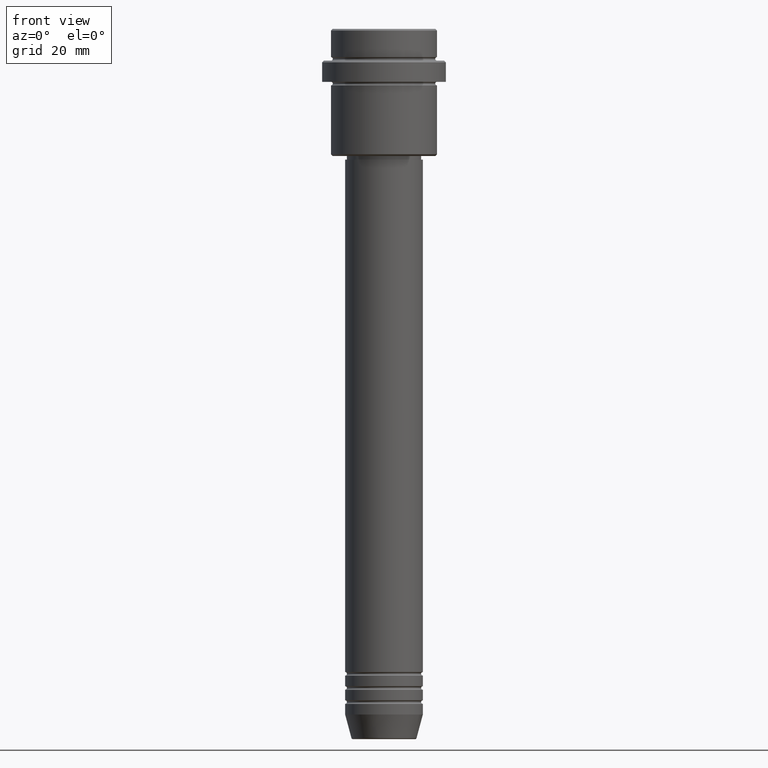
[diagram: clean part render]
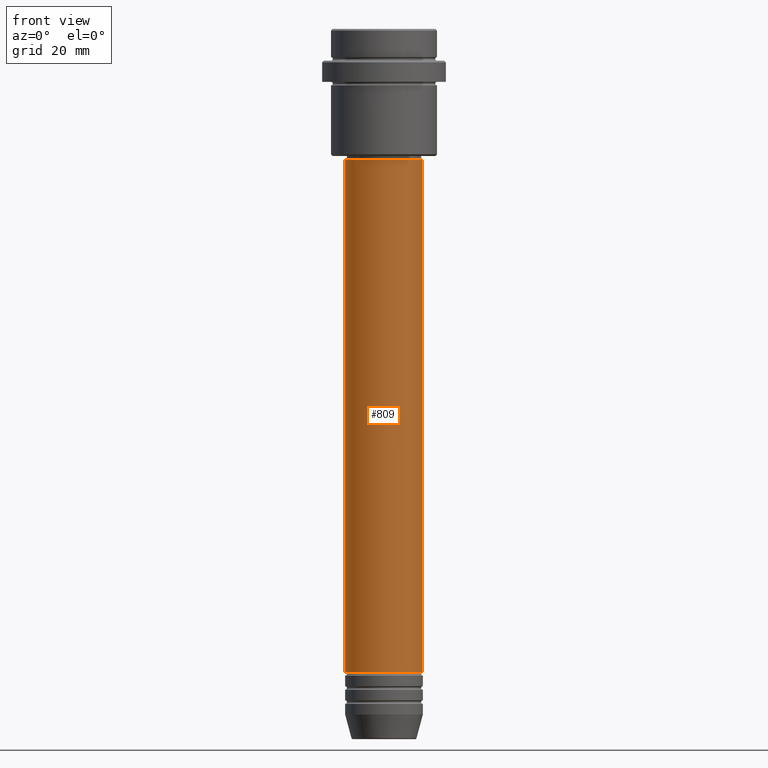
[diagram: same view with one face highlighted and labeled with its STEP entity id]
A machine part, front view. The second image highlights one B-rep face of the part: STEP entity #809.
In plain terms, the highlighted cylindrical surface (partial cylindrical patch) has radius 11 mm, axis along (-0, -0, 1).
Its self-contained STEP definition (entity closure, byte-faithful):
#19 = CARTESIAN_POINT ( 'NONE',  ( 0.000000000000000000, 0.000000000000000000, -37.00000000000000711 ) ) ;
#31 = CIRCLE ( 'NONE', #187, 11.00000000000000000 ) ;
#45 = ORIENTED_EDGE ( 'NONE', *, *, #960, .F. ) ;
#68 = EDGE_CURVE ( 'NONE', #738, #590, #31, .T. ) ;
#93 = CARTESIAN_POINT ( 'NONE',  ( 11.00000000000000000, 0.000000000000000000, -181.9999999999998863 ) ) ;
#118 = DIRECTION ( 'NONE',  ( -0.000000000000000000, -0.000000000000000000, 1.000000000000000000 ) ) ;
#187 = AXIS2_PLACEMENT_3D ( 'NONE', #1384, #290, #716 ) ;
#194 = CIRCLE ( 'NONE', #667, 10.99999999999999822 ) ;
#257 = CARTESIAN_POINT ( 'NONE',  ( -11.00000000000000000, 1.347111479062088405E-15, -181.9999999999998863 ) ) ;
#286 = DIRECTION ( 'NONE',  ( -0.000000000000000000, -0.000000000000000000, 1.000000000000000000 ) ) ;
#290 = DIRECTION ( 'NONE',  ( -0.000000000000000000, -0.000000000000000000, 1.000000000000000000 ) ) ;
#313 = CARTESIAN_POINT ( 'NONE',  ( 10.99999999999999822, 0.000000000000000000, -37.00000000000000711 ) ) ;
#366 = CARTESIAN_POINT ( 'NONE',  ( -11.00000000000000000, 1.347111479062088405E-15, 0.000000000000000000 ) ) ;
#496 = LINE ( 'NONE', #366, #847 ) ;
#567 = CYLINDRICAL_SURFACE ( 'NONE', #662, 11.00000000000000000 ) ;
#590 = VERTEX_POINT ( 'NONE', #93 ) ;
#654 = FACE_OUTER_BOUND ( 'NONE', #1280, .T. ) ;
#655 = ORIENTED_EDGE ( 'NONE', *, *, #742, .T. ) ;
#662 = AXIS2_PLACEMENT_3D ( 'NONE', #1092, #118, #989 ) ;
#667 = AXIS2_PLACEMENT_3D ( 'NONE', #19, #1325, #1261 ) ;
#696 = VERTEX_POINT ( 'NONE', #313 ) ;
#716 = DIRECTION ( 'NONE',  ( 1.000000000000000000, 0.000000000000000000, 0.000000000000000000 ) ) ;
#727 = VECTOR ( 'NONE', #1338, 1000.000000000000000 ) ;
#738 = VERTEX_POINT ( 'NONE', #257 ) ;
#742 = EDGE_CURVE ( 'NONE', #590, #696, #1202, .T. ) ;
#809 = ADVANCED_FACE ( 'NONE', ( #654 ), #567, .T. ) ;
#847 = VECTOR ( 'NONE', #286, 1000.000000000000000 ) ;
#854 = ORIENTED_EDGE ( 'NONE', *, *, #68, .T. ) ;
#881 = VERTEX_POINT ( 'NONE', #1051 ) ;
#960 = EDGE_CURVE ( 'NONE', #738, #881, #496, .T. ) ;
#989 = DIRECTION ( 'NONE',  ( 1.000000000000000000, 0.000000000000000000, 0.000000000000000000 ) ) ;
#1051 = CARTESIAN_POINT ( 'NONE',  ( -10.99999999999999822, 1.347111479062088207E-15, -37.00000000000000711 ) ) ;
#1084 = ORIENTED_EDGE ( 'NONE', *, *, #1262, .F. ) ;
#1092 = CARTESIAN_POINT ( 'NONE',  ( 0.000000000000000000, 0.000000000000000000, 0.000000000000000000 ) ) ;
#1109 = CARTESIAN_POINT ( 'NONE',  ( 11.00000000000000000, 0.000000000000000000, 0.000000000000000000 ) ) ;
#1202 = LINE ( 'NONE', #1109, #727 ) ;
#1261 = DIRECTION ( 'NONE',  ( 1.000000000000000000, 0.000000000000000000, 0.000000000000000000 ) ) ;
#1262 = EDGE_CURVE ( 'NONE', #881, #696, #194, .T. ) ;
#1280 = EDGE_LOOP ( 'NONE', ( #45, #854, #655, #1084 ) ) ;
#1325 = DIRECTION ( 'NONE',  ( -0.000000000000000000, -0.000000000000000000, 1.000000000000000000 ) ) ;
#1338 = DIRECTION ( 'NONE',  ( -0.000000000000000000, -0.000000000000000000, 1.000000000000000000 ) ) ;
#1384 = CARTESIAN_POINT ( 'NONE',  ( 0.000000000000000000, 0.000000000000000000, -181.9999999999998863 ) ) ;